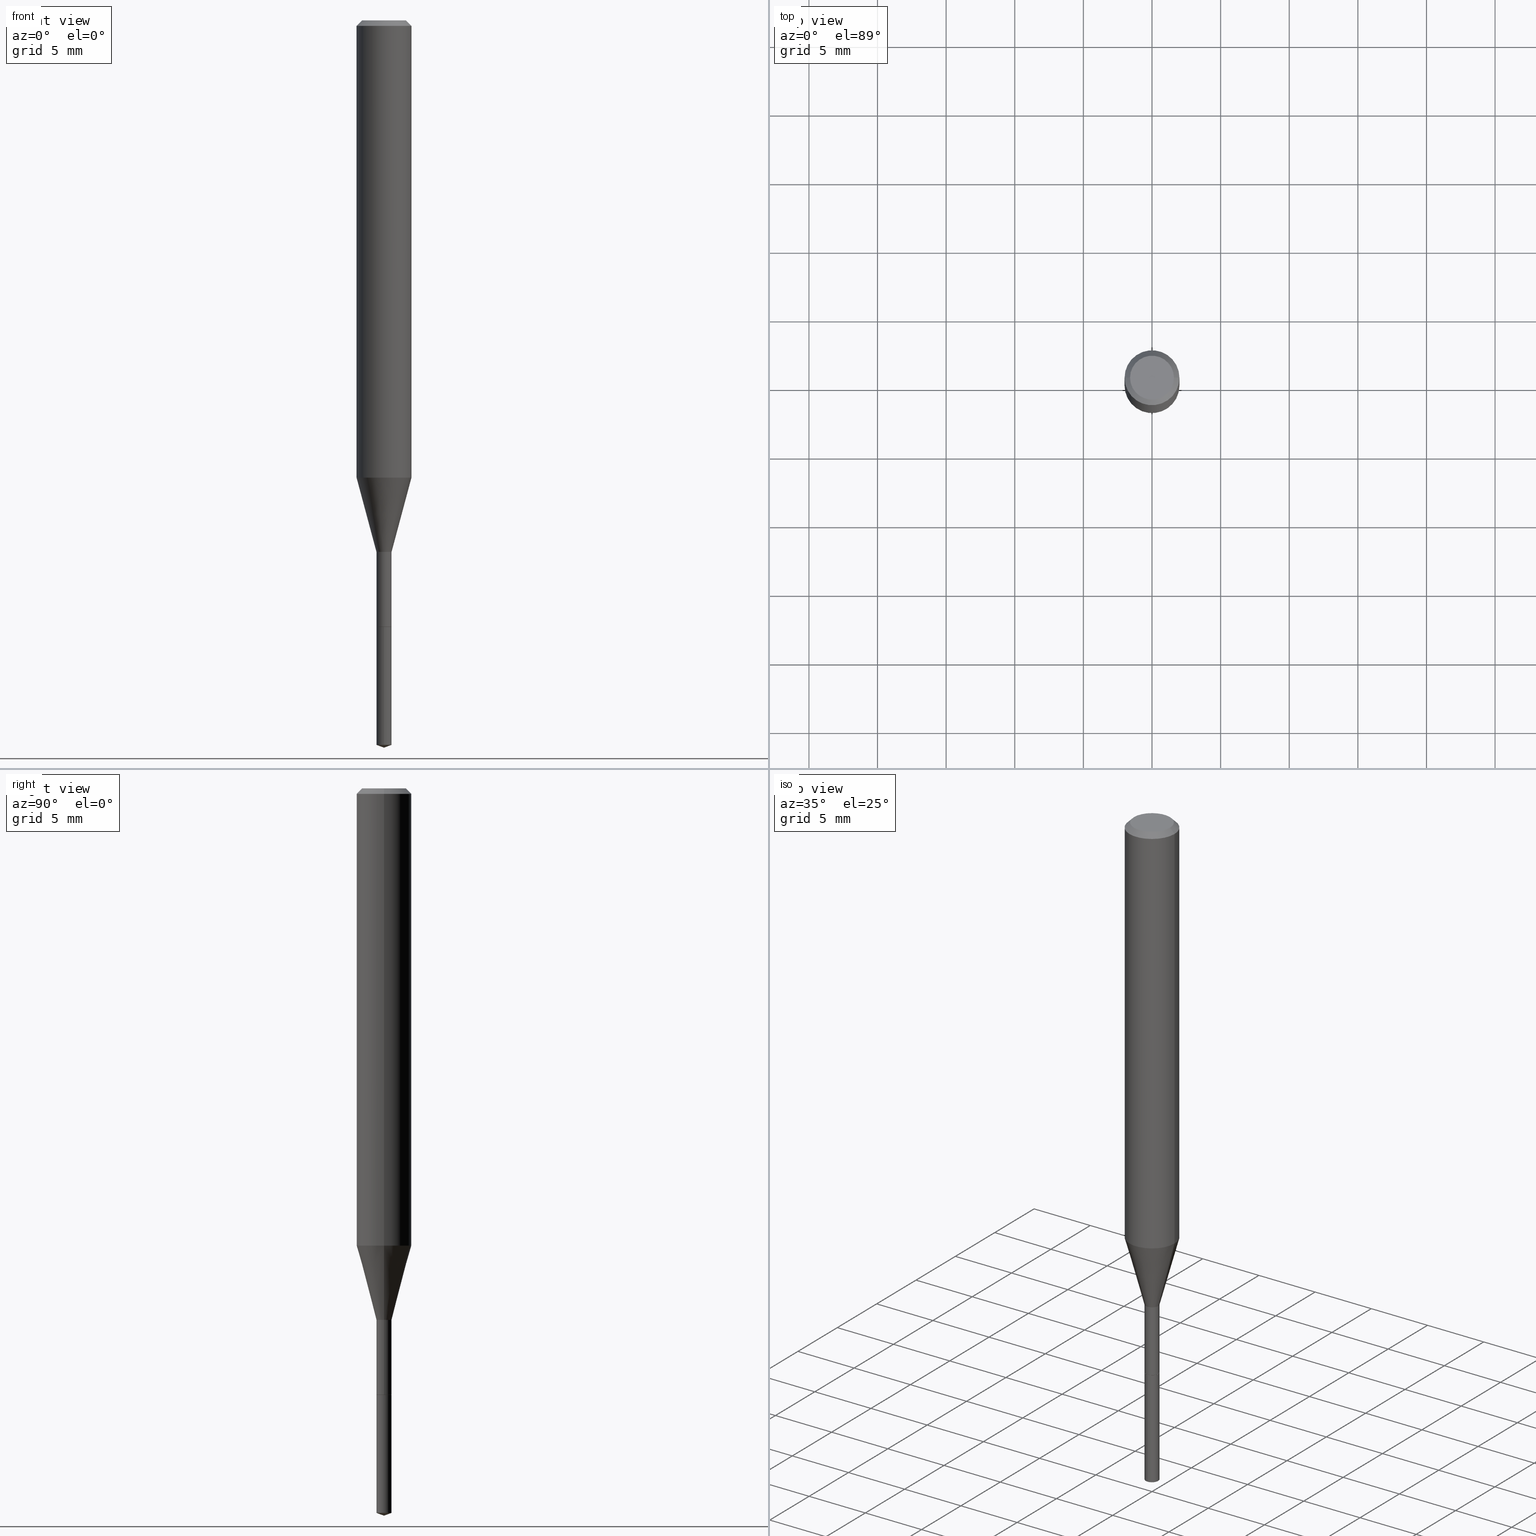
[diagram: canonical four-view strip — front | top / right | iso, engineering-drawing reading convention]
A machine part, canonical four-view strip (front | top / right | iso — engineering-drawing reading convention). The complete STEP part file that produces these views, byte-faithful:
ISO-10303-21;
HEADER;
FILE_DESCRIPTION (( 'STEP AP203' ),
    '1' );
FILE_NAME ('06001.STEP',
    '2024-04-23T18:59:32',
    ( '' ),
    ( '' ),
    'SwSTEP 2.0',
    'SolidWorks 2023',
    '' );
FILE_SCHEMA (( 'CONFIG_CONTROL_DESIGN' ));
ENDSEC;

DATA;
#1 = EDGE_CURVE ( 'NONE', #478, #485, #477, .T. ) ;
#2 = CARTESIAN_POINT ( 'NONE',  ( 5.084084128588279667E-29, -7.256897011717338152E-15, -2.078720044428136848 ) ) ;
#3 = CC_DESIGN_PERSON_AND_ORGANIZATION_ASSIGNMENT ( #362, #389, ( #440 ) ) ;
#4 = CARTESIAN_POINT ( 'NONE',  ( 0.000000000000000000, 0.000000000000000000, 0.000000000000000000 ) ) ;
#5 = VECTOR ( 'NONE', #398, 39.37007874015748854 ) ;
#6 = CYLINDRICAL_SURFACE ( 'NONE', #384, 0.07875000000000008382 ) ;
#7 = VECTOR ( 'NONE', #462, 39.37007874015748143 ) ;
#8 = CARTESIAN_POINT ( 'NONE',  ( 4.255360269642755723E-29, -6.075526677720957323E-15, -1.740099999999999758 ) ) ;
#9 = ORIENTED_EDGE ( 'NONE', *, *, #152, .T. ) ;
#10 = CARTESIAN_POINT ( 'NONE',  ( 3.851613369741610420E-31, -5.499083108677983377E-17, -0.01575000000000008338 ) ) ;
#11 = CARTESIAN_POINT ( 'NONE',  ( 3.208210279567590187E-29, -4.580474015397021196E-15, -1.311899898887816551 ) ) ;
#12 = ADVANCED_FACE ( 'NONE', ( #360 ), #176, .F. ) ;
#13 = DIRECTION ( 'NONE',  ( -2.447356181601937333E-29, 3.488778509823549304E-15, 1.000000000000000000 ) ) ;
#14 = AXIS2_PLACEMENT_3D ( 'NONE', #298, #436, #340 ) ;
#15 = CYLINDRICAL_SURFACE ( 'NONE', #421, 0.02164999999999999564 ) ;
#16 = EDGE_CURVE ( 'NONE', #319, #290, #358, .T. ) ;
#17 = ORIENTED_EDGE ( 'NONE', *, *, #172, .F. ) ;
#18 = CARTESIAN_POINT ( 'NONE',  ( 5.106653408530602526E-29, -7.279685238597816934E-15, -2.086599999999999788 ) ) ;
#19 = DIRECTION ( 'NONE',  ( -0.7071067811865455743, 2.468850131082236945E-15, -0.7071067811865493491 ) ) ;
#20 = VERTEX_POINT ( 'NONE', #212 ) ;
#21 = CARTESIAN_POINT ( 'NONE',  ( 4.255360269642755723E-29, -6.075526677720957323E-15, -1.740099999999999758 ) ) ;
#22 = ADVANCED_FACE ( 'NONE', ( #139 ), #15, .T. ) ;
#23 = AXIS2_PLACEMENT_3D ( 'NONE', #335, #170, #57 ) ;
#24 = PRODUCT_RELATED_PRODUCT_CATEGORY ( 'detail', '', ( #380 ) ) ;
#25 = CARTESIAN_POINT ( 'NONE',  ( 0.000000000000000000, 0.000000000000000000, 0.000000000000000000 ) ) ;
#26 = CARTESIAN_POINT ( 'NONE',  ( 0.02114999999999999172, -6.223216338354021258E-15, -1.740099999999999758 ) ) ;
#27 = VERTEX_POINT ( 'NONE', #253 ) ;
#28 =( CONVERSION_BASED_UNIT ( 'INCH', #105 ) LENGTH_UNIT ( ) NAMED_UNIT ( #145 ) );
#29 = PLANE ( 'NONE',  #224 ) ;
#30 = CIRCLE ( 'NONE', #189, 0.02164999999999999564 ) ;
#31 = ADVANCED_FACE ( 'NONE', ( #474 ), #400, .T. ) ;
#32 = VECTOR ( 'NONE', #281, 39.37007874015748143 ) ;
#33 = ORIENTED_EDGE ( 'NONE', *, *, #197, .T. ) ;
#34 = VERTEX_POINT ( 'NONE', #394 ) ;
#35 = APPROVAL_PERSON_ORGANIZATION ( #447, #265, #186 ) ;
#36 = ADVANCED_FACE ( 'NONE', ( #55 ), #79, .T. ) ;
#37 = APPROVAL_STATUS ( 'not_yet_approved' ) ;
#38 = PERSON_AND_ORGANIZATION ( #399, #165 ) ;
#39 = CARTESIAN_POINT ( 'NONE',  ( -0.07875000000000016709, -4.020921610985940816E-15, -1.311899898887816551 ) ) ;
#40 = AXIS2_PLACEMENT_3D ( 'NONE', #333, #475, #168 ) ;
#41 = CC_DESIGN_APPROVAL ( #137, ( #275 ) ) ;
#42 = DIRECTION ( 'NONE',  ( 2.445468806185136597E-29, -3.491481338843145583E-15, -1.000000000000000000 ) ) ;
#43 = EDGE_CURVE ( 'NONE', #363, #297, #233, .T. ) ;
#44 = DIRECTION ( 'NONE',  ( 1.000000000000000000, -6.982962677686246989E-15, 0.000000000000000000 ) ) ;
#45 = CARTESIAN_POINT ( 'NONE',  ( 1.538325022921125161E-16, 0.02164999999999274449, -2.078720044428136848 ) ) ;
#46 = ORIENTED_EDGE ( 'NONE', *, *, #395, .T. ) ;
#47 = EDGE_CURVE ( 'NONE', #485, #254, #151, .T. ) ;
#48 = DIRECTION ( 'NONE',  ( -2.447356181601937333E-29, 3.488778509823549304E-15, 1.000000000000000000 ) ) ;
#49 = ORIENTED_EDGE ( 'NONE', *, *, #325, .F. ) ;
#50 = DIRECTION ( 'NONE',  ( 1.000000000000000000, -6.982962677686267499E-15, 4.876176775795935232E-29 ) ) ;
#51 = AXIS2_PLACEMENT_3D ( 'NONE', #303, #480, #144 ) ;
#52 = ORIENTED_EDGE ( 'NONE', *, *, #110, .T. ) ;
#53 = ORIENTED_EDGE ( 'NONE', *, *, #325, .T. ) ;
#54 = CARTESIAN_POINT ( 'NONE',  ( -0.07875000000000000056, -1.758180018830819886E-15, -0.01575000000000008338 ) ) ;
#55 = FACE_OUTER_BOUND ( 'NONE', #439, .T. ) ;
#56 = EDGE_LOOP ( 'NONE', ( #17, #63, #130 ) ) ;
#57 = DIRECTION ( 'NONE',  ( 6.982962677686265922E-15, 1.000000000000000000, -3.488778509823549304E-15 ) ) ;
#58 = EDGE_CURVE ( 'NONE', #446, #363, #342, .T. ) ;
#59 = CIRCLE ( 'NONE', #463, 0.07875000000000016709 ) ;
#60 = DIRECTION ( 'NONE',  ( -2.445468806185136597E-29, 3.491481338843145583E-15, 1.000000000000000000 ) ) ;
#61 = ORIENTED_EDGE ( 'NONE', *, *, #441, .F. ) ;
#62 = DIRECTION ( 'NONE',  ( -2.447356181601937333E-29, 3.488778509823549304E-15, 1.000000000000000000 ) ) ;
#63 = ORIENTED_EDGE ( 'NONE', *, *, #364, .T. ) ;
#64 = ORIENTED_EDGE ( 'NONE', *, *, #470, .F. ) ;
#65 = DATE_TIME_ROLE ( 'creation_date' ) ;
#66 = DIRECTION ( 'NONE',  ( -2.445468806185136597E-29, 3.491481338843145583E-15, 1.000000000000000000 ) ) ;
#67 = CIRCLE ( 'NONE', #282, 0.06300000000000000044 ) ;
#68 = CARTESIAN_POINT ( 'NONE',  ( -1.511811419718650833E-16, -0.02165000000000607064, -1.740099999999999758 ) ) ;
#69 = COORDINATED_UNIVERSAL_TIME_OFFSET ( 5, 0, .BEHIND. ) ;
#70 = DIRECTION ( 'NONE',  ( 1.000000000000000000, -6.982962677686265922E-15, 0.000000000000000000 ) ) ;
#71 = DIRECTION ( 'NONE',  ( -2.445468806185136597E-29, 3.491481338843145583E-15, 1.000000000000000000 ) ) ;
#72 = CC_DESIGN_PERSON_AND_ORGANIZATION_ASSIGNMENT ( #169, #285, ( #440 ) ) ;
#73 = LOCAL_TIME ( 14, 59, 32.00000000000000000, #341 ) ;
#74 = DIRECTION ( 'NONE',  ( -2.445468806185136597E-29, 3.491481338843145583E-15, 1.000000000000000000 ) ) ;
#75 = DIRECTION ( 'NONE',  ( 1.000000000000000000, -6.982962677686271444E-15, 0.000000000000000000 ) ) ;
#76 = CARTESIAN_POINT ( 'NONE',  ( 5.106711006030404221E-29, -7.279685238597818512E-15, -2.086599999999999788 ) ) ;
#77 = ADVANCED_FACE ( 'NONE', ( #99 ), #162, .T. ) ;
#78 = DIRECTION ( 'NONE',  ( -2.445468806185136597E-29, 3.491481338843145583E-15, 1.000000000000000000 ) ) ;
#79 = CONICAL_SURFACE ( 'NONE', #430, 0.02114999999999999172, 0.7853981633975507526 ) ;
#80 = ORIENTED_EDGE ( 'NONE', *, *, #322, .T. ) ;
#81 = AXIS2_PLACEMENT_3D ( 'NONE', #346, #460, #419 ) ;
#82 = ORIENTED_EDGE ( 'NONE', *, *, #197, .F. ) ;
#83 = DIRECTION ( 'NONE',  ( -2.445468806185136597E-29, 3.491481338843145583E-15, 1.000000000000000000 ) ) ;
#84 = ORIENTED_EDGE ( 'NONE', *, *, #264, .T. ) ;
#85 = FACE_OUTER_BOUND ( 'NONE', #204, .T. ) ;
#86 = APPROVAL ( #269, 'UNSPECIFIED' ) ;
#87 = EDGE_LOOP ( 'NONE', ( #250, #246, #296, #49 ) ) ;
#88 = ORIENTED_EDGE ( 'NONE', *, *, #236, .T. ) ;
#89 = DIRECTION ( 'NONE',  ( 1.000000000000000000, -6.982962677686246989E-15, 0.000000000000000000 ) ) ;
#90 = CIRCLE ( 'NONE', #405, 0.02164999999999996788 ) ;
#91 = AXIS2_PLACEMENT_3D ( 'NONE', #10, #237, #347 ) ;
#92 = CARTESIAN_POINT ( 'NONE',  ( -0.02164999999999996788, -5.170676539443734408E-15, -1.524999999999999689 ) ) ;
#93 = ORIENTED_EDGE ( 'NONE', *, *, #240, .F. ) ;
#94 = ORIENTED_EDGE ( 'NONE', *, *, #1, .T. ) ;
#95 = CC_DESIGN_DATE_AND_TIME_ASSIGNMENT ( #444, #65, ( #208 ) ) ;
#96 = CARTESIAN_POINT ( 'NONE',  ( 4.255360269642755723E-29, -6.075526677720957323E-15, -1.740099999999999758 ) ) ;
#97 = EDGE_LOOP ( 'NONE', ( #392, #443, #52, #353 ) ) ;
#98 = CIRCLE ( 'NONE', #203, 0.07875000000000000056 ) ;
#99 = FACE_OUTER_BOUND ( 'NONE', #56, .T. ) ;
#100 = EDGE_LOOP ( 'NONE', ( #84, #46 ) ) ;
#101 = FACE_OUTER_BOUND ( 'NONE', #148, .T. ) ;
#102 = EDGE_CURVE ( 'NONE', #213, #478, #90, .T. ) ;
#103 = CARTESIAN_POINT ( 'NONE',  ( 4.713871149261278955E-47, -6.730158695841834933E-33, -1.927594061857933439E-18 ) ) ;
#104 = ORIENTED_EDGE ( 'NONE', *, *, #47, .T. ) ;
#105 = LENGTH_MEASURE_WITH_UNIT ( LENGTH_MEASURE( 0.02539999999999999897 ), #219 );
#106 = DIRECTION ( 'NONE',  ( 1.000000000000000000, -6.982962677686278543E-15, 0.000000000000000000 ) ) ;
#107 = ORIENTED_EDGE ( 'NONE', *, *, #102, .T. ) ;
#108 = DIRECTION ( 'NONE',  ( -2.445468806185136877E-29, 3.491481338843145188E-15, 1.000000000000000000 ) ) ;
#109 = AXIS2_PLACEMENT_3D ( 'NONE', #404, #445, #220 ) ;
#110 = EDGE_CURVE ( 'NONE', #27, #20, #266, .T. ) ;
#111 = CONICAL_SURFACE ( 'NONE', #268, 0.07875000000000000056, 0.7853981633974456145 ) ;
#112 = DATE_AND_TIME ( #229, #490 ) ;
#113 = ADVANCED_BREP_SHAPE_REPRESENTATION ( '06001', ( #305, #116, #308 ), #456 ) ;
#114 = ADVANCED_FACE ( 'NONE', ( #180 ), #403, .T. ) ;
#115 = PERSON_AND_ORGANIZATION ( #399, #165 ) ;
#116 = MANIFOLD_SOLID_BREP ( 'Body-Move/Copy2[2]', #390 ) ;
#117 = DIRECTION ( 'NONE',  ( -6.982962677686265922E-15, -1.000000000000000000, 0.000000000000000000 ) ) ;
#118 = DIRECTION ( 'NONE',  ( 0.2588190451025212391, 1.565188264969622362E-15, 0.9659258262890679791 ) ) ;
#119 = LINE ( 'NONE', #191, #153 ) ;
#120 = CARTESIAN_POINT ( 'NONE',  ( 0.02164999999999999217, -6.224962079023443550E-15, -1.739600000000000035 ) ) ;
#121 = CARTESIAN_POINT ( 'NONE',  ( 5.100084964605052607E-29, -7.289091624151816740E-15, -2.086599999999999788 ) ) ;
#122 = ORIENTED_EDGE ( 'NONE', *, *, #192, .T. ) ;
#123 = DIRECTION ( 'NONE',  ( -2.445468806185136877E-29, 3.491481338843145188E-15, 1.000000000000000000 ) ) ;
#124 = APPLICATION_CONTEXT ( 'configuration controlled 3d designs of mechanical parts and assemblies' ) ;
#125 = LOCAL_TIME ( 14, 59, 32.00000000000000000, #146 ) ;
#126 = APPROVAL_DATE_TIME ( #473, #137 ) ;
#127 = ADVANCED_FACE ( 'NONE', ( #442 ), #437, .T. ) ;
#128 = FACE_OUTER_BOUND ( 'NONE', #133, .T. ) ;
#129 = COORDINATED_UNIVERSAL_TIME_OFFSET ( 5, 0, .BEHIND. ) ;
#130 = ORIENTED_EDGE ( 'NONE', *, *, #472, .F. ) ;
#131 = EDGE_LOOP ( 'NONE', ( #107, #94, #201, #141 ) ) ;
#132 = DIRECTION ( 'NONE',  ( -2.445468806185136597E-29, 3.491481338843145583E-15, 1.000000000000000000 ) ) ;
#133 = EDGE_LOOP ( 'NONE', ( #242, #177, #64, #291 ) ) ;
#134 = CARTESIAN_POINT ( 'NONE',  ( 3.851613369741610420E-31, -5.499083108677983377E-17, -0.01575000000000008338 ) ) ;
#135 = AXIS2_PLACEMENT_3D ( 'NONE', #343, #299, #409 ) ;
#136 = CIRCLE ( 'NONE', #239, 0.02164999999999999564 ) ;
#137 = APPROVAL ( #294, 'UNSPECIFIED' ) ;
#138 = VERTEX_POINT ( 'NONE', #300 ) ;
#139 = FACE_OUTER_BOUND ( 'NONE', #209, .T. ) ;
#140 = DIRECTION ( 'NONE',  ( -2.445468806185136597E-29, 3.491481338843145583E-15, 1.000000000000000000 ) ) ;
#141 = ORIENTED_EDGE ( 'NONE', *, *, #192, .F. ) ;
#142 = ADVANCED_FACE ( 'NONE', ( #257 ), #29, .F. ) ;
#143 = VECTOR ( 'NONE', #218, 39.37007874015748143 ) ;
#144 = DIRECTION ( 'NONE',  ( 1.000000000000000000, -6.982962677686271444E-15, 0.000000000000000000 ) ) ;
#145 = DIMENSIONAL_EXPONENTS ( 1.000000000000000000, 0.000000000000000000, 0.000000000000000000, 0.000000000000000000, 0.000000000000000000, 0.000000000000000000, 0.000000000000000000 ) ;
#146 = COORDINATED_UNIVERSAL_TIME_OFFSET ( 5, 0, .BEHIND. ) ;
#147 = DIRECTION ( 'NONE',  ( 1.000000000000000000, -6.982962677686270655E-15, 0.000000000000000000 ) ) ;
#148 = EDGE_LOOP ( 'NONE', ( #309, #82, #418, #88 ) ) ;
#149 = ADVANCED_FACE ( 'NONE', ( #185 ), #369, .F. ) ;
#150 = DIRECTION ( 'NONE',  ( 1.000000000000000000, 0.000000000000000000, 0.000000000000000000 ) ) ;
#151 = CIRCLE ( 'NONE', #51, 0.07875000000000016709 ) ;
#152 = EDGE_CURVE ( 'NONE', #254, #207, #317, .T. ) ;
#153 = VECTOR ( 'NONE', #276, 39.37007874015748143 ) ;
#154 = DIRECTION ( 'NONE',  ( -6.982962677686265922E-15, -1.000000000000000000, 0.000000000000000000 ) ) ;
#155 = CARTESIAN_POINT ( 'NONE',  ( 4.255360269642755723E-29, -6.075526677720957323E-15, -1.740099999999999758 ) ) ;
#156 = DIRECTION ( 'NONE',  ( -2.445468806185136597E-29, 3.491481338843145583E-15, 1.000000000000000000 ) ) ;
#157 = DIRECTION ( 'NONE',  ( 1.000000000000000000, -6.982962677686265922E-15, 4.876176775795935793E-29 ) ) ;
#158 = PRODUCT_DEFINITION_SHAPE ( 'NONE', 'NONE',  #208 ) ;
#159 = CARTESIAN_POINT ( 'NONE',  ( 0.02164999999999998176, -1.511811419719075585E-16, 1.055692271959819087E-30 ) ) ;
#160 = CARTESIAN_POINT ( 'NONE',  ( 0.07875000000000008382, -5.499083108677941345E-16, 3.839989210939303220E-30 ) ) ;
#161 = COORDINATED_UNIVERSAL_TIME_OFFSET ( 5, 0, .BEHIND. ) ;
#162 = CONICAL_SURFACE ( 'NONE', #109, 108.1684023407369324, 1.221730476396041931 ) ;
#163 = AXIS2_PLACEMENT_3D ( 'NONE', #471, #428, #89 ) ;
#164 = CYLINDRICAL_SURFACE ( 'NONE', #411, 0.07875000000000008382 ) ;
#165 = ORGANIZATION ( 'UNSPECIFIED', 'UNSPECIFIED', '' ) ;
#166 = SECURITY_CLASSIFICATION_LEVEL ( 'unclassified' ) ;
#167 = CARTESIAN_POINT ( 'NONE',  ( 4.254137535239663482E-29, -6.073780937051535819E-15, -1.739600000000000035 ) ) ;
#168 = DIRECTION ( 'NONE',  ( 1.000000000000000000, -6.982962677686246989E-15, 0.000000000000000000 ) ) ;
#169 = PERSON_AND_ORGANIZATION ( #399, #165 ) ;
#170 = DIRECTION ( 'NONE',  ( 2.447356181601937053E-29, -3.488778509823549304E-15, -1.000000000000000000 ) ) ;
#171 = DIRECTION ( 'NONE',  ( -2.445468806185136597E-29, 3.491481338843145583E-15, 1.000000000000000000 ) ) ;
#172 = EDGE_CURVE ( 'NONE', #280, #27, #458, .T. ) ;
#173 = ORIENTED_EDGE ( 'NONE', *, *, #364, .F. ) ;
#174 = CLOSED_SHELL ( 'NONE', ( #22, #77, #288, #357, #12 ) ) ;
#175 = AXIS2_PLACEMENT_3D ( 'NONE', #198, #156, #354 ) ;
#176 = PLANE ( 'NONE',  #23 ) ;
#177 = ORIENTED_EDGE ( 'NONE', *, *, #240, .T. ) ;
#178 = ORIENTED_EDGE ( 'NONE', *, *, #448, .T. ) ;
#179 = APPROVAL_DATE_TIME ( #375, #86 ) ;
#180 = FACE_OUTER_BOUND ( 'NONE', #87, .T. ) ;
#181 = CC_DESIGN_PERSON_AND_ORGANIZATION_ASSIGNMENT ( #38, #310, ( #380 ) ) ;
#182 = EDGE_LOOP ( 'NONE', ( #93, #104, #9, #338 ) ) ;
#183 = MECHANICAL_CONTEXT ( 'NONE', #124, 'mechanical' ) ;
#184 = AXIS2_PLACEMENT_3D ( 'NONE', #452, #74, #44 ) ;
#185 = FACE_OUTER_BOUND ( 'NONE', #427, .T. ) ;
#186 = APPROVAL_ROLE ( '' ) ;
#187 = CC_DESIGN_PERSON_AND_ORGANIZATION_ASSIGNMENT ( #483, #339, ( #208 ) ) ;
#188 = AXIS2_PLACEMENT_3D ( 'NONE', #226, #140, #484 ) ;
#189 = AXIS2_PLACEMENT_3D ( 'NONE', #21, #13, #287 ) ;
#190 = VECTOR ( 'NONE', #277, 39.37007874015748143 ) ;
#191 = CARTESIAN_POINT ( 'NONE',  ( -0.02114999999999999172, -5.925246889107696118E-15, -1.740099999999999758 ) ) ;
#192 = EDGE_CURVE ( 'NONE', #213, #254, #420, .T. ) ;
#193 = LINE ( 'NONE', #159, #376 ) ;
#194 = DIRECTION ( 'NONE',  ( -2.447356181601937333E-29, 3.488778509823549304E-15, 1.000000000000000000 ) ) ;
#195 = APPROVAL_PERSON_ORGANIZATION ( #397, #137, #434 ) ;
#196 = ORIENTED_EDGE ( 'NONE', *, *, #407, .F. ) ;
#197 = EDGE_CURVE ( 'NONE', #319, #138, #67, .T. ) ;
#198 = CARTESIAN_POINT ( 'NONE',  ( 4.254137535239663482E-29, -6.073780937051535819E-15, -1.739600000000000035 ) ) ;
#199 = CARTESIAN_POINT ( 'NONE',  ( 9.427742298522557911E-47, -1.346031739168366987E-32, -3.855188123715866879E-18 ) ) ;
#200 = EDGE_CURVE ( 'NONE', #254, #485, #59, .T. ) ;
#201 = ORIENTED_EDGE ( 'NONE', *, *, #200, .F. ) ;
#202 = DIRECTION ( 'NONE',  ( 1.000000000000000000, -6.982962677686246989E-15, 0.000000000000000000 ) ) ;
#203 = AXIS2_PLACEMENT_3D ( 'NONE', #134, #293, #205 ) ;
#204 = EDGE_LOOP ( 'NONE', ( #173, #295, #61 ) ) ;
#205 = DIRECTION ( 'NONE',  ( 1.000000000000000000, -6.982962677686265922E-15, 0.000000000000000000 ) ) ;
#206 = CIRCLE ( 'NONE', #81, 0.06300000000000000044 ) ;
#207 = VERTEX_POINT ( 'NONE', #235 ) ;
#208 = PRODUCT_DEFINITION ( 'UNKNOWN', '', #440, #227 ) ;
#209 = EDGE_LOOP ( 'NONE', ( #221, #80, #336, #284 ) ) ;
#210 = CARTESIAN_POINT ( 'NONE',  ( 0.07875000000000000056, -5.952550484112880131E-16, -0.01575000000000008338 ) ) ;
#211 = ORIENTED_EDGE ( 'NONE', *, *, #448, .F. ) ;
#212 = CARTESIAN_POINT ( 'NONE',  ( -1.511811419718650833E-16, -0.02165000000000607064, -1.740099999999999758 ) ) ;
#213 = VERTEX_POINT ( 'NONE', #378 ) ;
#214 = CIRCLE ( 'NONE', #248, 0.02164999999999999564 ) ;
#215 = DIRECTION ( 'NONE',  ( -2.447356181601937333E-29, 3.488778509823549304E-15, 1.000000000000000000 ) ) ;
#216 = ORIENTED_EDGE ( 'NONE', *, *, #43, .F. ) ;
#217 = ADVANCED_FACE ( 'NONE', ( #329 ), #349, .T. ) ;
#218 = DIRECTION ( 'NONE',  ( 0.7071067811866199593, -2.468850131083015945E-15, 0.7071067811864750752 ) ) ;
#219 =( LENGTH_UNIT ( ) NAMED_UNIT ( * ) SI_UNIT ( $, .METRE. ) );
#220 = DIRECTION ( 'NONE',  ( -6.982962677686268288E-15, -1.000000000000000000, 3.475157955500608590E-15 ) ) ;
#221 = ORIENTED_EDGE ( 'NONE', *, *, #472, .T. ) ;
#222 = APPLICATION_PROTOCOL_DEFINITION ( 'international standard', 'config_control_design', 1994, #304 ) ;
#223 = VECTOR ( 'NONE', #118, 39.37007874015748854 ) ;
#224 = AXIS2_PLACEMENT_3D ( 'NONE', #103, #401, #367 ) ;
#225 = AXIS2_PLACEMENT_3D ( 'NONE', #2, #316, #154 ) ;
#226 = CARTESIAN_POINT ( 'NONE',  ( 0.000000000000000000, 0.000000000000000000, 0.000000000000000000 ) ) ;
#227 = DESIGN_CONTEXT ( 'detailed design', #304, 'design' ) ;
#228 = EDGE_CURVE ( 'NONE', #138, #207, #361, .T. ) ;
#229 = CALENDAR_DATE ( 2024, 23, 4 ) ;
#230 = CARTESIAN_POINT ( 'NONE',  ( -0.02164999999999996788, -5.545312487101604062E-15, -1.524999999999999689 ) ) ;
#231 = APPLICATION_PROTOCOL_DEFINITION ( 'international standard', 'config_control_design', 1994, #124 ) ;
#232 = ADVANCED_FACE ( 'NONE', ( #128 ), #164, .T. ) ;
#233 = CIRCLE ( 'NONE', #366, 0.02164999999999999217 ) ;
#234 = LINE ( 'NONE', #348, #32 ) ;
#235 = CARTESIAN_POINT ( 'NONE',  ( 0.07875000000000000056, -6.048991419545733705E-16, -0.01575000000000008338 ) ) ;
#236 = EDGE_CURVE ( 'NONE', #290, #207, #98, .T. ) ;
#237 = DIRECTION ( 'NONE',  ( 2.445468806185136597E-29, -3.491481338843145583E-15, -1.000000000000000000 ) ) ;
#238 = CARTESIAN_POINT ( 'NONE',  ( -0.06300000000000000044, 4.674220642376242452E-16, -3.855188123719040041E-18 ) ) ;
#239 = AXIS2_PLACEMENT_3D ( 'NONE', #302, #408, #368 ) ;
#240 = EDGE_CURVE ( 'NONE', #485, #290, #433, .T. ) ;
#241 = DATE_TIME_ROLE ( 'classification_date' ) ;
#242 = ORIENTED_EDGE ( 'NONE', *, *, #200, .T. ) ;
#243 = DIRECTION ( 'NONE',  ( -6.982962677686268288E-15, -1.000000000000000000, 3.475157955500608590E-15 ) ) ;
#244 = CC_DESIGN_PERSON_AND_ORGANIZATION_ASSIGNMENT ( #356, #327, ( #275 ) ) ;
#245 = VECTOR ( 'NONE', #355, 39.37007874015748143 ) ;
#246 = ORIENTED_EDGE ( 'NONE', *, *, #487, .T. ) ;
#247 = CARTESIAN_POINT ( 'NONE',  ( -9.124923638831159401E-28, 1.300690962073476146E-13, 37.28347874015748431 ) ) ;
#248 = AXIS2_PLACEMENT_3D ( 'NONE', #377, #48, #416 ) ;
#249 = DIRECTION ( 'NONE',  ( -6.982962677686265922E-15, -1.000000000000000000, 0.000000000000000000 ) ) ;
#250 = ORIENTED_EDGE ( 'NONE', *, *, #43, .T. ) ;
#251 = ORIENTED_EDGE ( 'NONE', *, *, #272, .F. ) ;
#252 = ORIENTED_EDGE ( 'NONE', *, *, #407, .T. ) ;
#253 = CARTESIAN_POINT ( 'NONE',  ( -1.511811419718568249E-16, -0.02165000000000725719, -2.078720044428136848 ) ) ;
#254 = VERTEX_POINT ( 'NONE', #467 ) ;
#255 = VECTOR ( 'NONE', #388, 39.37007874015748854 ) ;
#256 = LOCAL_TIME ( 14, 59, 32.00000000000000000, #129 ) ;
#257 = FACE_OUTER_BOUND ( 'NONE', #311, .T. ) ;
#258 = ORIENTED_EDGE ( 'NONE', *, *, #470, .T. ) ;
#259 = CARTESIAN_POINT ( 'NONE',  ( 0.000000000000000000, 0.000000000000000000, 0.000000000000000000 ) ) ;
#260 = CARTESIAN_POINT ( 'NONE',  ( 3.729339929432332637E-29, -5.324509041735796511E-15, -1.524999999999999689 ) ) ;
#261 = UNCERTAINTY_MEASURE_WITH_UNIT (LENGTH_MEASURE( 1.000000000000000082E-05 ), #28, 'distance_accuracy_value', 'NONE');
#262 = ORIENTED_EDGE ( 'NONE', *, *, #58, .T. ) ;
#263 = CARTESIAN_POINT ( 'NONE',  ( 3.851613369741610420E-31, -5.499083108677983377E-17, -0.01575000000000008338 ) ) ;
#264 = EDGE_CURVE ( 'NONE', #20, #387, #30, .T. ) ;
#265 = APPROVAL ( #37, 'UNSPECIFIED' ) ;
#266 = LINE ( 'NONE', #68, #371 ) ;
#267 = ORIENTED_EDGE ( 'NONE', *, *, #228, .T. ) ;
#268 = AXIS2_PLACEMENT_3D ( 'NONE', #457, #42, #320 ) ;
#269 = APPROVAL_STATUS ( 'not_yet_approved' ) ;
#270 = FACE_OUTER_BOUND ( 'NONE', #97, .T. ) ;
#271 = DIRECTION ( 'NONE',  ( -2.445468806185136597E-29, 3.491481338843145583E-15, 1.000000000000000000 ) ) ;
#272 = EDGE_CURVE ( 'NONE', #34, #446, #350, .T. ) ;
#273 = VECTOR ( 'NONE', #19, 39.37007874015748854 ) ;
#274 = AXIS2_PLACEMENT_3D ( 'NONE', #247, #393, #243 ) ;
#275 = SECURITY_CLASSIFICATION ( '', '', #166 ) ;
#276 = DIRECTION ( 'NONE',  ( -0.7071067811866199593, 7.493145998870616062E-15, 0.7071067811864750752 ) ) ;
#277 = DIRECTION ( 'NONE',  ( 6.676917655467994950E-15, 0.9396926207859134239, 0.3420201433256548906 ) ) ;
#278 = CARTESIAN_POINT ( 'NONE',  ( 0.02164999999999996788, -5.475690183707704242E-15, -1.524999999999999689 ) ) ;
#279 = EDGE_CURVE ( 'NONE', #478, #213, #323, .T. ) ;
#280 = VERTEX_POINT ( 'NONE', #18 ) ;
#281 = DIRECTION ( 'NONE',  ( -2.447356181601937333E-29, 3.488778509823549304E-15, 1.000000000000000000 ) ) ;
#282 = AXIS2_PLACEMENT_3D ( 'NONE', #199, #271, #417 ) ;
#283 = CONICAL_SURFACE ( 'NONE', #135, 0.02164999999999996788, 0.2617993877991499629 ) ;
#284 = ORIENTED_EDGE ( 'NONE', *, *, #110, .F. ) ;
#285 = PERSON_AND_ORGANIZATION_ROLE ( 'creator' ) ;
#286 = CARTESIAN_POINT ( 'NONE',  ( 4.255360269642755723E-29, -6.075526677720957323E-15, -1.740099999999999758 ) ) ;
#287 = DIRECTION ( 'NONE',  ( -6.982962677686265922E-15, -1.000000000000000000, 0.000000000000000000 ) ) ;
#288 = ADVANCED_FACE ( 'NONE', ( #85 ), #481, .T. ) ;
#289 = SHAPE_DEFINITION_REPRESENTATION ( #158, #113 ) ;
#290 = VERTEX_POINT ( 'NONE', #54 ) ;
#291 = ORIENTED_EDGE ( 'NONE', *, *, #152, .F. ) ;
#292 = DIRECTION ( 'NONE',  ( 1.000000000000000000, -6.982962677686278543E-15, 0.000000000000000000 ) ) ;
#293 = DIRECTION ( 'NONE',  ( -2.445468806185136597E-29, 3.491481338843145583E-15, 1.000000000000000000 ) ) ;
#294 = APPROVAL_STATUS ( 'not_yet_approved' ) ;
#295 = ORIENTED_EDGE ( 'NONE', *, *, #172, .T. ) ;
#296 = ORIENTED_EDGE ( 'NONE', *, *, #102, .F. ) ;
#297 = VERTEX_POINT ( 'NONE', #450 ) ;
#298 = CARTESIAN_POINT ( 'NONE',  ( 3.729339929432332637E-29, -5.324509041735796511E-15, -1.524999999999999689 ) ) ;
#299 = DIRECTION ( 'NONE',  ( -2.445468806185136597E-29, 3.491481338843145583E-15, 1.000000000000000000 ) ) ;
#300 = CARTESIAN_POINT ( 'NONE',  ( 0.06300000000000000044, -5.137332111354472216E-16, -3.855188123712532709E-18 ) ) ;
#301 = ORIENTED_EDGE ( 'NONE', *, *, #487, .F. ) ;
#302 = CARTESIAN_POINT ( 'NONE',  ( 5.084084128588279667E-29, -7.256897011717338152E-15, -2.078720044428136848 ) ) ;
#303 = CARTESIAN_POINT ( 'NONE',  ( 3.208210279567590187E-29, -4.580474015397021196E-15, -1.311899898887816551 ) ) ;
#304 = APPLICATION_CONTEXT ( 'configuration controlled 3d designs of mechanical parts and assemblies' ) ;
#305 = MANIFOLD_SOLID_BREP ( 'Body-Move/Copy2[1]', #174 ) ;
#306 = CALENDAR_DATE ( 2024, 23, 4 ) ;
#307 = AXIS2_PLACEMENT_3D ( 'NONE', #25, #60, #431 ) ;
#308 = AXIS2_PLACEMENT_3D ( 'NONE', #259, #402, #150 ) ;
#309 = ORIENTED_EDGE ( 'NONE', *, *, #228, .F. ) ;
#310 = PERSON_AND_ORGANIZATION_ROLE ( 'design_owner' ) ;
#311 = EDGE_LOOP ( 'NONE', ( #33, #252 ) ) ;
#312 = CARTESIAN_POINT ( 'NONE',  ( 0.02114999999999999172, -6.223216338354021258E-15, -1.740099999999999758 ) ) ;
#313 = FACE_OUTER_BOUND ( 'NONE', #337, .T. ) ;
#314 = CONICAL_SURFACE ( 'NONE', #91, 0.07875000000000000056, 0.7853981633974456145 ) ;
#315 = APPROVAL_PERSON_ORGANIZATION ( #115, #86, #488 ) ;
#316 = DIRECTION ( 'NONE',  ( -2.447356181601937333E-29, 3.488778509823549304E-15, 1.000000000000000000 ) ) ;
#317 = LINE ( 'NONE', #160, #489 ) ;
#318 = ADVANCED_FACE ( 'NONE', ( #101 ), #314, .T. ) ;
#319 = VERTEX_POINT ( 'NONE', #238 ) ;
#320 = DIRECTION ( 'NONE',  ( -1.000000000000000000, 6.982962677686265922E-15, 0.000000000000000000 ) ) ;
#321 = CALENDAR_DATE ( 2024, 23, 4 ) ;
#322 = EDGE_CURVE ( 'NONE', #406, #387, #234, .T. ) ;
#323 = CIRCLE ( 'NONE', #438, 0.02164999999999996788 ) ;
#324 = CC_DESIGN_SECURITY_CLASSIFICATION ( #275, ( #440 ) ) ;
#325 = EDGE_CURVE ( 'NONE', #363, #213, #193, .T. ) ;
#326 = CARTESIAN_POINT ( 'NONE',  ( 0.000000000000000000, 0.000000000000000000, 0.000000000000000000 ) ) ;
#327 = PERSON_AND_ORGANIZATION_ROLE ( 'classification_officer' ) ;
#328 = DIRECTION ( 'NONE',  ( -2.445468806185136597E-29, 3.491481338843145583E-15, 1.000000000000000000 ) ) ;
#329 = FACE_OUTER_BOUND ( 'NONE', #423, .T. ) ;
#330 = APPROVAL_DATE_TIME ( #112, #265 ) ;
#331 = CARTESIAN_POINT ( 'NONE',  ( -0.07875000000000000056, 4.949174797810137153E-16, -0.01575000000000008338 ) ) ;
#332 = ORIENTED_EDGE ( 'NONE', *, *, #58, .F. ) ;
#333 = CARTESIAN_POINT ( 'NONE',  ( 4.255360269642755723E-29, -6.075526677720957323E-15, -1.740099999999999758 ) ) ;
#334 = ADVANCED_FACE ( 'NONE', ( #313 ), #111, .T. ) ;
#335 = CARTESIAN_POINT ( 'NONE',  ( 4.255360269642755723E-29, -6.075526677720957323E-15, -1.740099999999999758 ) ) ;
#336 = ORIENTED_EDGE ( 'NONE', *, *, #264, .F. ) ;
#337 = EDGE_LOOP ( 'NONE', ( #196, #267, #258, #396 ) ) ;
#338 = ORIENTED_EDGE ( 'NONE', *, *, #236, .F. ) ;
#339 = PERSON_AND_ORGANIZATION_ROLE ( 'creator' ) ;
#340 = DIRECTION ( 'NONE',  ( 1.000000000000000000, -6.982962677686278543E-15, 0.000000000000000000 ) ) ;
#341 = COORDINATED_UNIVERSAL_TIME_OFFSET ( 5, 0, .BEHIND. ) ;
#342 = LINE ( 'NONE', #26, #143 ) ;
#343 = CARTESIAN_POINT ( 'NONE',  ( 3.729339929432332637E-29, -5.324509041735796511E-15, -1.524999999999999689 ) ) ;
#344 =( NAMED_UNIT ( * ) PLANE_ANGLE_UNIT ( ) SI_UNIT ( $, .RADIAN. ) );
#345 = CC_DESIGN_APPROVAL ( #265, ( #440 ) ) ;
#346 = CARTESIAN_POINT ( 'NONE',  ( 9.427742298522557911E-47, -1.346031739168366987E-32, -3.855188123715866879E-18 ) ) ;
#347 = DIRECTION ( 'NONE',  ( -1.000000000000000000, 6.982962677686265922E-15, 0.000000000000000000 ) ) ;
#348 = CARTESIAN_POINT ( 'NONE',  ( 1.538325022921041838E-16, 0.02164999999999392410, -1.740099999999999758 ) ) ;
#349 = CONICAL_SURFACE ( 'NONE', #40, 0.02114999999999999172, 0.7853981633975507526 ) ;
#350 = CIRCLE ( 'NONE', #163, 0.02114999999999999172 ) ;
#351 = VECTOR ( 'NONE', #108, 39.37007874015748143 ) ;
#352 = CC_DESIGN_APPROVAL ( #86, ( #208 ) ) ;
#353 = ORIENTED_EDGE ( 'NONE', *, *, #395, .F. ) ;
#354 = DIRECTION ( 'NONE',  ( 1.000000000000000000, -6.982962677686270655E-15, 0.000000000000000000 ) ) ;
#355 = DIRECTION ( 'NONE',  ( -2.445468806185136877E-29, 3.491481338843145188E-15, 1.000000000000000000 ) ) ;
#356 = PERSON_AND_ORGANIZATION ( #399, #165 ) ;
#357 = ADVANCED_FACE ( 'NONE', ( #270 ), #410, .T. ) ;
#358 = LINE ( 'NONE', #331, #273 ) ;
#359 = CARTESIAN_POINT ( 'NONE',  ( -0.07875000000000008382, 5.595524044110794920E-16, -3.873661383575742696E-30 ) ) ;
#360 = FACE_OUTER_BOUND ( 'NONE', #100, .T. ) ;
#361 = LINE ( 'NONE', #210, #255 ) ;
#362 = PERSON_AND_ORGANIZATION ( #399, #165 ) ;
#363 = VERTEX_POINT ( 'NONE', #120 ) ;
#364 = EDGE_CURVE ( 'NONE', #280, #406, #382, .T. ) ;
#365 = ORIENTED_EDGE ( 'NONE', *, *, #279, .T. ) ;
#366 = AXIS2_PLACEMENT_3D ( 'NONE', #167, #328, #147 ) ;
#367 = DIRECTION ( 'NONE',  ( -1.000000000000000000, 6.982962677686265922E-15, -4.876176775795935793E-29 ) ) ;
#368 = DIRECTION ( 'NONE',  ( -6.982962677686265922E-15, -1.000000000000000000, 0.000000000000000000 ) ) ;
#369 = PLANE ( 'NONE',  #455 ) ;
#370 = ORIENTED_EDGE ( 'NONE', *, *, #429, .T. ) ;
#371 = VECTOR ( 'NONE', #62, 39.37007874015748143 ) ;
#372 = AXIS2_PLACEMENT_3D ( 'NONE', #263, #71, #70 ) ;
#373 = FACE_OUTER_BOUND ( 'NONE', #466, .T. ) ;
#374 = EDGE_LOOP ( 'NONE', ( #301, #370, #53, #425 ) ) ;
#375 = DATE_AND_TIME ( #306, #73 ) ;
#376 = VECTOR ( 'NONE', #123, 39.37007874015748143 ) ;
#377 = CARTESIAN_POINT ( 'NONE',  ( 4.255360269642755723E-29, -6.075526677720957323E-15, -1.740099999999999758 ) ) ;
#378 = CARTESIAN_POINT ( 'NONE',  ( 0.02164999999999996788, -5.475690183707704242E-15, -1.524999999999999689 ) ) ;
#379 = FACE_OUTER_BOUND ( 'NONE', #182, .T. ) ;
#380 = PRODUCT ( '06001', '06001', '', ( #183 ) ) ;
#381 = ORIENTED_EDGE ( 'NONE', *, *, #272, .T. ) ;
#382 = LINE ( 'NONE', #76, #190 ) ;
#383 = DIRECTION ( 'NONE',  ( -2.445468806185136877E-29, 3.491481338843145188E-15, 1.000000000000000000 ) ) ;
#384 = AXIS2_PLACEMENT_3D ( 'NONE', #4, #78, #454 ) ;
#385 = ADVANCED_FACE ( 'NONE', ( #379 ), #6, .T. ) ;
#386 = EDGE_CURVE ( 'NONE', #34, #297, #119, .T. ) ;
#387 = VERTEX_POINT ( 'NONE', #415 ) ;
#388 = DIRECTION ( 'NONE',  ( 0.7071067811865455743, -7.319954787623248157E-15, -0.7071067811865493491 ) ) ;
#389 = PERSON_AND_ORGANIZATION_ROLE ( 'design_supplier' ) ;
#390 = CLOSED_SHELL ( 'NONE', ( #36, #334, #232, #127, #114, #31, #461, #385, #318, #142, #149, #217 ) ) ;
#391 = CIRCLE ( 'NONE', #225, 0.02164999999999999564 ) ;
#392 = ORIENTED_EDGE ( 'NONE', *, *, #322, .F. ) ;
#393 = DIRECTION ( 'NONE',  ( -2.447356181601937333E-29, 3.488778509823549304E-15, 1.000000000000000000 ) ) ;
#394 = CARTESIAN_POINT ( 'NONE',  ( -0.02114999999999999172, -5.922597661933584917E-15, -1.740099999999999758 ) ) ;
#395 = EDGE_CURVE ( 'NONE', #387, #20, #214, .T. ) ;
#396 = ORIENTED_EDGE ( 'NONE', *, *, #16, .F. ) ;
#397 = PERSON_AND_ORGANIZATION ( #399, #165 ) ;
#398 = DIRECTION ( 'NONE',  ( -0.2588190451025212391, 5.211531920934549464E-15, 0.9659258262890679791 ) ) ;
#399 = PERSON ( 'UNSPECIFIED', 'UNSPECIFIED', 'UNSPECIFIED', ('UNSPECIFIED'), ('UNSPECIFIED'), ('UNSPECIFIED') ) ;
#400 = CYLINDRICAL_SURFACE ( 'NONE', #307, 0.02164999999999998176 ) ;
#401 = DIRECTION ( 'NONE',  ( 2.438088387897960049E-29, -3.491481338843145188E-15, -1.000000000000000000 ) ) ;
#402 = DIRECTION ( 'NONE',  ( 0.000000000000000000, 0.000000000000000000, 1.000000000000000000 ) ) ;
#403 = CYLINDRICAL_SURFACE ( 'NONE', #188, 0.02164999999999998176 ) ;
#404 = CARTESIAN_POINT ( 'NONE',  ( -9.124923638831159401E-28, 1.300690962073476146E-13, 37.28347874015748431 ) ) ;
#405 = AXIS2_PLACEMENT_3D ( 'NONE', #260, #66, #106 ) ;
#406 = VERTEX_POINT ( 'NONE', #45 ) ;
#407 = EDGE_CURVE ( 'NONE', #138, #319, #206, .T. ) ;
#408 = DIRECTION ( 'NONE',  ( -2.447356181601937333E-29, 3.488778509823549304E-15, 1.000000000000000000 ) ) ;
#409 = DIRECTION ( 'NONE',  ( 1.000000000000000000, -6.982962677686278543E-15, 0.000000000000000000 ) ) ;
#410 = CYLINDRICAL_SURFACE ( 'NONE', #476, 0.02164999999999999564 ) ;
#411 = AXIS2_PLACEMENT_3D ( 'NONE', #326, #171, #50 ) ;
#412 = DIRECTION ( 'NONE',  ( -2.445468806185136597E-29, 3.491481338843145583E-15, 1.000000000000000000 ) ) ;
#413 = CIRCLE ( 'NONE', #175, 0.02164999999999999217 ) ;
#414 = CC_DESIGN_DATE_AND_TIME_ASSIGNMENT ( #464, #241, ( #275 ) ) ;
#415 = CARTESIAN_POINT ( 'NONE',  ( 1.538325022921125654E-16, 0.02164999999999392757, -1.740099999999999758 ) ) ;
#416 = DIRECTION ( 'NONE',  ( -6.982962677686265922E-15, -1.000000000000000000, 0.000000000000000000 ) ) ;
#417 = DIRECTION ( 'NONE',  ( 1.000000000000000000, -6.982962677686265922E-15, 4.875905316334701673E-29 ) ) ;
#418 = ORIENTED_EDGE ( 'NONE', *, *, #16, .T. ) ;
#419 = DIRECTION ( 'NONE',  ( 1.000000000000000000, -6.982962677686265922E-15, 4.875905316334701673E-29 ) ) ;
#420 = LINE ( 'NONE', #278, #223 ) ;
#421 = AXIS2_PLACEMENT_3D ( 'NONE', #96, #215, #249 ) ;
#422 = CIRCLE ( 'NONE', #372, 0.07875000000000000056 ) ;
#423 = EDGE_LOOP ( 'NONE', ( #424, #381, #262, #459 ) ) ;
#424 = ORIENTED_EDGE ( 'NONE', *, *, #386, .F. ) ;
#425 = ORIENTED_EDGE ( 'NONE', *, *, #279, .F. ) ;
#426 = CARTESIAN_POINT ( 'NONE',  ( 3.729339929432332637E-29, -5.324509041735796511E-15, -1.524999999999999689 ) ) ;
#427 = EDGE_LOOP ( 'NONE', ( #211, #251 ) ) ;
#428 = DIRECTION ( 'NONE',  ( -2.445468806185136597E-29, 3.491481338843145583E-15, 1.000000000000000000 ) ) ;
#429 = EDGE_CURVE ( 'NONE', #297, #363, #413, .T. ) ;
#430 = AXIS2_PLACEMENT_3D ( 'NONE', #286, #83, #202 ) ;
#431 = DIRECTION ( 'NONE',  ( 1.000000000000000000, -6.982962677686267499E-15, 4.876176775795935232E-29 ) ) ;
#432 = ORIENTED_EDGE ( 'NONE', *, *, #1, .F. ) ;
#433 = LINE ( 'NONE', #359, #245 ) ;
#434 = APPROVAL_ROLE ( '' ) ;
#435 = ORIENTED_EDGE ( 'NONE', *, *, #47, .F. ) ;
#436 = DIRECTION ( 'NONE',  ( -2.445468806185136597E-29, 3.491481338843145583E-15, 1.000000000000000000 ) ) ;
#437 = CONICAL_SURFACE ( 'NONE', #14, 0.02164999999999996788, 0.2617993877991499629 ) ;
#438 = AXIS2_PLACEMENT_3D ( 'NONE', #426, #132, #292 ) ;
#439 = EDGE_LOOP ( 'NONE', ( #178, #469, #216, #332 ) ) ;
#440 = PRODUCT_DEFINITION_FORMATION_WITH_SPECIFIED_SOURCE ( 'ANY', '', #380, .NOT_KNOWN. ) ;
#441 = EDGE_CURVE ( 'NONE', #406, #27, #391, .T. ) ;
#442 = FACE_OUTER_BOUND ( 'NONE', #131, .T. ) ;
#443 = ORIENTED_EDGE ( 'NONE', *, *, #441, .T. ) ;
#444 = DATE_AND_TIME ( #479, #125 ) ;
#445 = DIRECTION ( 'NONE',  ( -2.447356181601937333E-29, 3.488778509823549304E-15, 1.000000000000000000 ) ) ;
#446 = VERTEX_POINT ( 'NONE', #312 ) ;
#447 = PERSON_AND_ORGANIZATION ( #399, #165 ) ;
#448 = EDGE_CURVE ( 'NONE', #446, #34, #482, .T. ) ;
#449 =( NAMED_UNIT ( * ) SI_UNIT ( $, .STERADIAN. ) SOLID_ANGLE_UNIT ( ) );
#450 = CARTESIAN_POINT ( 'NONE',  ( -0.02164999999999999217, -5.545312487101604062E-15, -1.739600000000000035 ) ) ;
#451 = CARTESIAN_POINT ( 'NONE',  ( -0.02164999999999998176, 1.538325022920615606E-16, -1.064949447040186151E-30 ) ) ;
#452 = CARTESIAN_POINT ( 'NONE',  ( 4.255360269642755723E-29, -6.075526677720957323E-15, -1.740099999999999758 ) ) ;
#453 = DIRECTION ( 'NONE',  ( -2.438088387897960049E-29, 3.491481338843145188E-15, 1.000000000000000000 ) ) ;
#454 = DIRECTION ( 'NONE',  ( 1.000000000000000000, -6.982962677686267499E-15, 4.876176775795935232E-29 ) ) ;
#455 = AXIS2_PLACEMENT_3D ( 'NONE', #8, #453, #157 ) ;
#456 =( GEOMETRIC_REPRESENTATION_CONTEXT ( 3 ) GLOBAL_UNCERTAINTY_ASSIGNED_CONTEXT ( ( #261 ) ) GLOBAL_UNIT_ASSIGNED_CONTEXT ( ( #28, #344, #449 ) ) REPRESENTATION_CONTEXT ( 'NONE', 'WORKASPACE' ) );
#457 = CARTESIAN_POINT ( 'NONE',  ( 3.851613369741610420E-31, -5.499083108677983377E-17, -0.01575000000000008338 ) ) ;
#458 = LINE ( 'NONE', #121, #7 ) ;
#459 = ORIENTED_EDGE ( 'NONE', *, *, #429, .F. ) ;
#460 = DIRECTION ( 'NONE',  ( -2.445468806185136597E-29, 3.491481338843145583E-15, 1.000000000000000000 ) ) ;
#461 = ADVANCED_FACE ( 'NONE', ( #373 ), #283, .T. ) ;
#462 = DIRECTION ( 'NONE',  ( -6.561838499445227673E-15, -0.9396926207859109814, 0.3420201433256614409 ) ) ;
#463 = AXIS2_PLACEMENT_3D ( 'NONE', #11, #412, #75 ) ;
#464 = DATE_AND_TIME ( #468, #465 ) ;
#465 = LOCAL_TIME ( 14, 59, 32.00000000000000000, #161 ) ;
#466 = EDGE_LOOP ( 'NONE', ( #432, #365, #122, #435 ) ) ;
#467 = CARTESIAN_POINT ( 'NONE',  ( 0.07875000000000016709, -5.130382326264816119E-15, -1.311899898887816551 ) ) ;
#468 = CALENDAR_DATE ( 2024, 23, 4 ) ;
#469 = ORIENTED_EDGE ( 'NONE', *, *, #386, .T. ) ;
#470 = EDGE_CURVE ( 'NONE', #207, #290, #422, .T. ) ;
#471 = CARTESIAN_POINT ( 'NONE',  ( 4.255360269642755723E-29, -6.075526677720957323E-15, -1.740099999999999758 ) ) ;
#472 = EDGE_CURVE ( 'NONE', #27, #406, #136, .T. ) ;
#473 = DATE_AND_TIME ( #321, #256 ) ;
#474 = FACE_OUTER_BOUND ( 'NONE', #374, .T. ) ;
#475 = DIRECTION ( 'NONE',  ( -2.445468806185136597E-29, 3.491481338843145583E-15, 1.000000000000000000 ) ) ;
#476 = AXIS2_PLACEMENT_3D ( 'NONE', #155, #194, #117 ) ;
#477 = LINE ( 'NONE', #92, #5 ) ;
#478 = VERTEX_POINT ( 'NONE', #230 ) ;
#479 = CALENDAR_DATE ( 2024, 23, 4 ) ;
#480 = DIRECTION ( 'NONE',  ( -2.445468806185136597E-29, 3.491481338843145583E-15, 1.000000000000000000 ) ) ;
#481 = CONICAL_SURFACE ( 'NONE', #274, 108.1684023407369324, 1.221730476396041931 ) ;
#482 = CIRCLE ( 'NONE', #184, 0.02114999999999999172 ) ;
#483 = PERSON_AND_ORGANIZATION ( #399, #165 ) ;
#484 = DIRECTION ( 'NONE',  ( 1.000000000000000000, -6.982962677686267499E-15, 4.876176775795935232E-29 ) ) ;
#485 = VERTEX_POINT ( 'NONE', #39 ) ;
#486 = LINE ( 'NONE', #451, #351 ) ;
#487 = EDGE_CURVE ( 'NONE', #297, #478, #486, .T. ) ;
#488 = APPROVAL_ROLE ( '' ) ;
#489 = VECTOR ( 'NONE', #383, 39.37007874015748143 ) ;
#490 = LOCAL_TIME ( 14, 59, 32.00000000000000000, #69 ) ;
ENDSEC;
END-ISO-10303-21;
